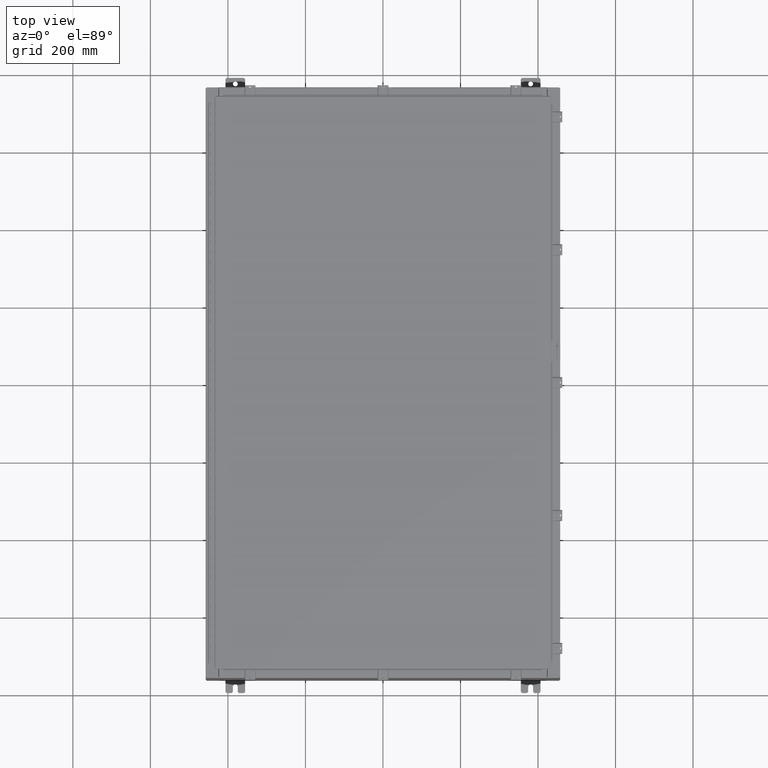
[diagram: clean part render]
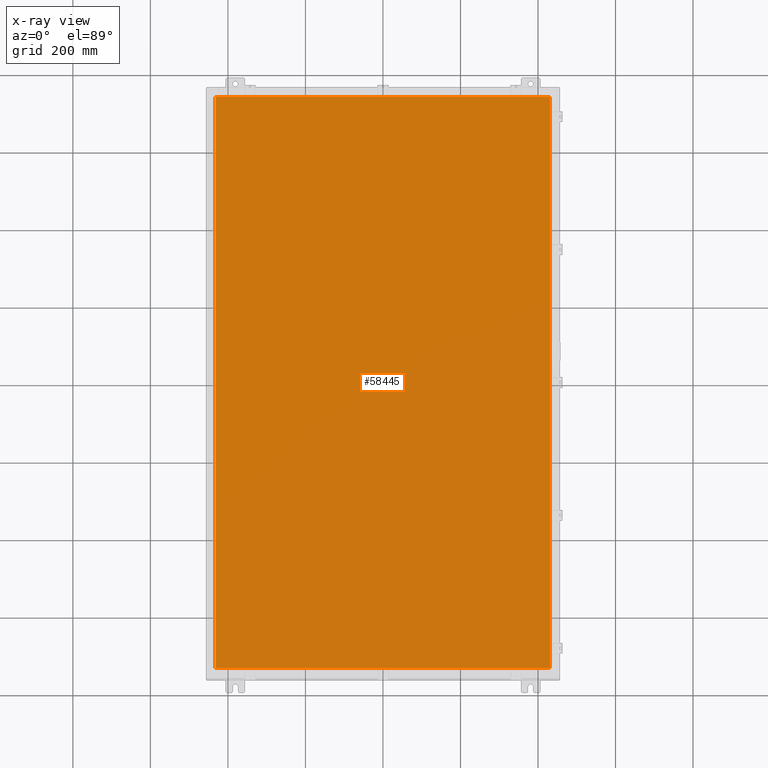
[diagram: x-ray — body ghosted, one internal face saturated and labeled with its STEP entity id]
A machine part, top view, then the same camera in x-ray: the body is ghosted and one INTERNAL B-rep face — a face not visible from any outside direction — is saturated and labeled: STEP entity #58445.
In plain terms, the highlighted planar face has unit normal (0, 0, -1).
Its self-contained STEP definition (entity closure, byte-faithful):
#105 = CARTESIAN_POINT ( 'NONE',  ( 16.99030000000000500, -29.00630000000000000, -0.07470000000000019700 ) ) ;
#159 = DIRECTION ( 'NONE',  ( -1.000000000000000000, -0.0000000000000000000, -0.0000000000000000000 ) ) ;
#1524 = EDGE_CURVE ( 'NONE', #51758, #59980, #38457, .T. ) ;
#2002 = LINE ( 'NONE', #105, #52191 ) ;
#2399 = CARTESIAN_POINT ( 'NONE',  ( 16.99030000000000500, -29.00630000000000000, -0.07470000000000000300 ) ) ;
#4077 = VERTEX_POINT ( 'NONE', #2399 ) ;
#7181 = CARTESIAN_POINT ( 'NONE',  ( 0.0000000000000000000, 0.0000000000000000000, -0.07470000000000000300 ) ) ;
#9099 = EDGE_CURVE ( 'NONE', #17067, #51758, #43344, .T. ) ;
#12036 = DIRECTION ( 'NONE',  ( -1.000000000000000000, 0.0000000000000000000, -0.0000000000000000000 ) ) ;
#12596 = VECTOR ( 'NONE', #59557, 39.37007874015748100 ) ;
#16118 = EDGE_CURVE ( 'NONE', #4077, #17067, #2002, .T. ) ;
#17067 = VERTEX_POINT ( 'NONE', #17876 ) ;
#17876 = CARTESIAN_POINT ( 'NONE',  ( 16.99030000000000500, 29.00630000000000000, -0.07470000000000000300 ) ) ;
#26423 = EDGE_LOOP ( 'NONE', ( #49268, #31544, #58850, #42673 ) ) ;
#27254 = CARTESIAN_POINT ( 'NONE',  ( -16.99029999999999400, 29.00630000000000000, -0.07469999999999582500 ) ) ;
#29762 = CARTESIAN_POINT ( 'NONE',  ( -16.99029999999999400, 29.00630000000000000, -0.07470000000000000300 ) ) ;
#31544 = ORIENTED_EDGE ( 'NONE', *, *, #48523, .F. ) ;
#34143 = DIRECTION ( 'NONE',  ( 0.0000000000000000000, 1.000000000000000000, 0.0000000000000000000 ) ) ;
#38402 = LINE ( 'NONE', #61541, #49794 ) ;
#38457 = LINE ( 'NONE', #27254, #12596 ) ;
#41201 = DIRECTION ( 'NONE',  ( 0.0000000000000000000, 0.0000000000000000000, -1.000000000000000000 ) ) ;
#42673 = ORIENTED_EDGE ( 'NONE', *, *, #9099, .F. ) ;
#43344 = LINE ( 'NONE', #53553, #53207 ) ;
#48523 = EDGE_CURVE ( 'NONE', #59980, #4077, #38402, .T. ) ;
#49268 = ORIENTED_EDGE ( 'NONE', *, *, #16118, .F. ) ;
#49794 = VECTOR ( 'NONE', #56667, 39.37007874015748100 ) ;
#51758 = VERTEX_POINT ( 'NONE', #29762 ) ;
#52191 = VECTOR ( 'NONE', #34143, 39.37007874015748100 ) ;
#52823 = AXIS2_PLACEMENT_3D ( 'NONE', #7181, #41201, #12036 ) ;
#52857 = CARTESIAN_POINT ( 'NONE',  ( -16.99029999999999800, -29.00630000000000000, -0.07470000000000000300 ) ) ;
#52956 = FACE_OUTER_BOUND ( 'NONE', #26423, .T. ) ;
#53207 = VECTOR ( 'NONE', #159, 39.37007874015748100 ) ;
#53553 = CARTESIAN_POINT ( 'NONE',  ( 16.99030000000000500, 29.00630000000000300, -0.07469999999999804600 ) ) ;
#56667 = DIRECTION ( 'NONE',  ( 1.000000000000000000, -0.0000000000000000000, -0.0000000000000000000 ) ) ;
#58445 = ADVANCED_FACE ( 'NONE', ( #52956 ), #60506, .T. ) ;
#58850 = ORIENTED_EDGE ( 'NONE', *, *, #1524, .F. ) ;
#59557 = DIRECTION ( 'NONE',  ( 0.0000000000000000000, -1.000000000000000000, 0.0000000000000000000 ) ) ;
#59980 = VERTEX_POINT ( 'NONE', #52857 ) ;
#60506 = PLANE ( 'NONE',  #52823 ) ;
#61541 = CARTESIAN_POINT ( 'NONE',  ( -16.99029999999999800, -29.00630000000000300, -0.07469999999999804600 ) ) ;